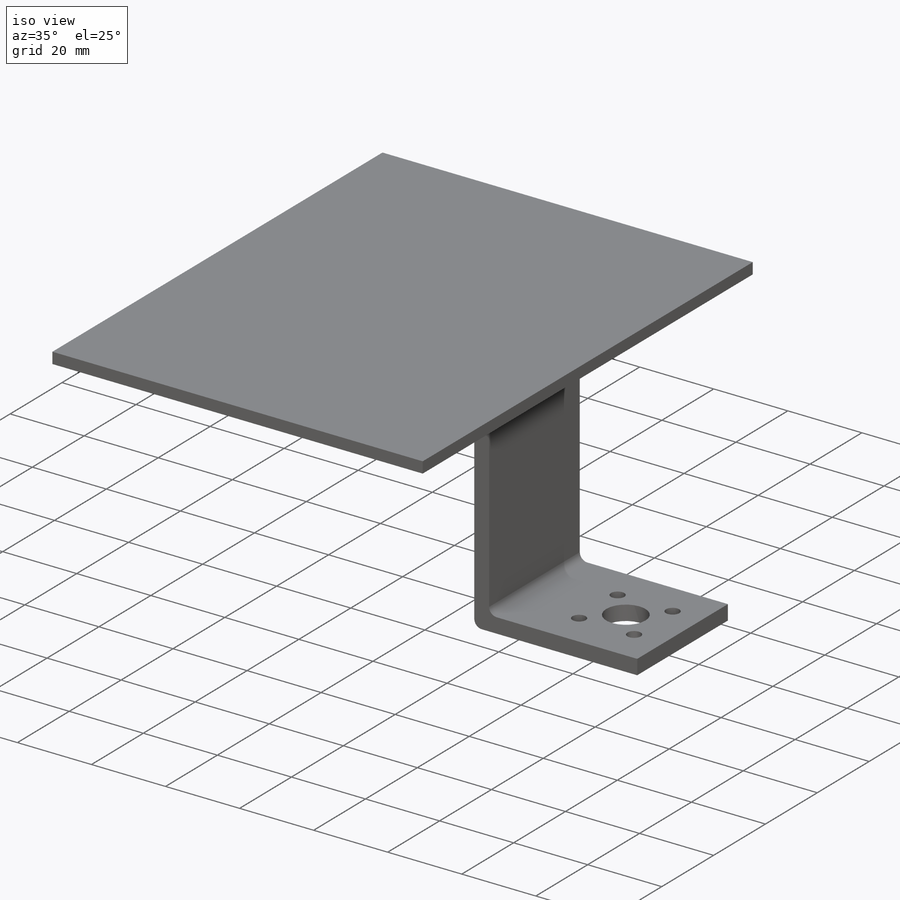
[diagram: iso view]
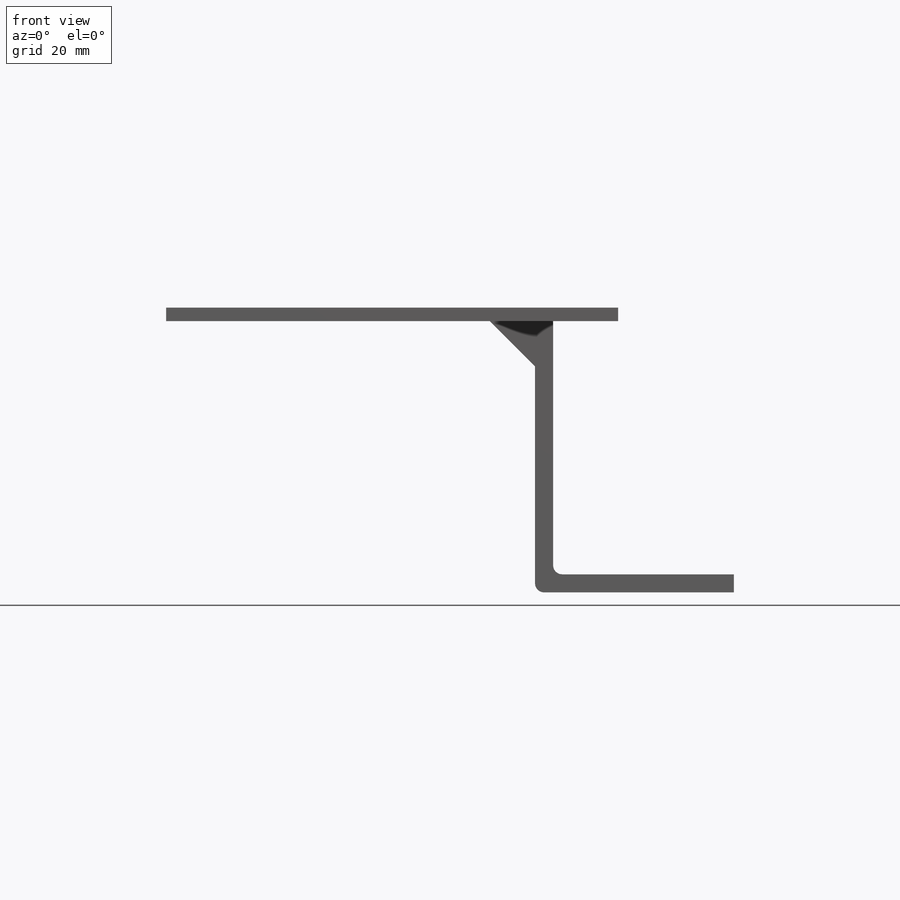
[diagram: front view]
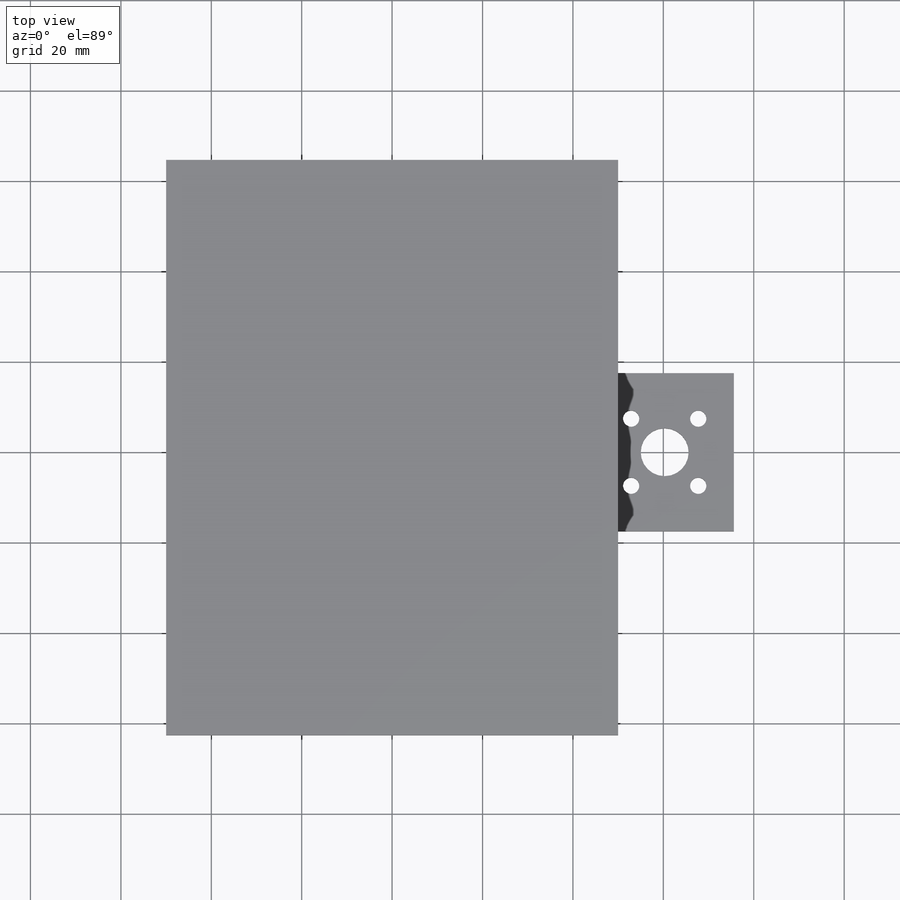
[diagram: top view]
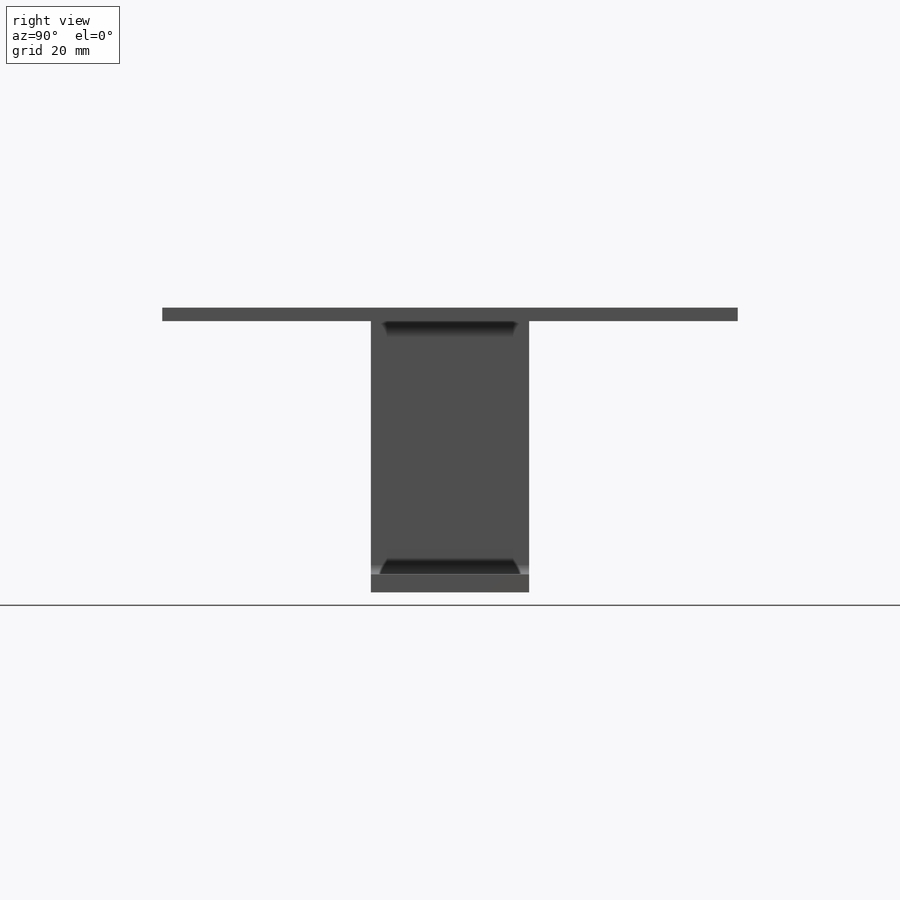
[diagram: right view]
SOLIDWORKS PART (.sldprt)
format: sldprt  version: not decoded by parser v0  size: 203,264 bytes
history: native  units: mm
features: sketch x4, plane x3, extrude x3, material x1, chamfer x1, fillet x1, cut_extrude x1 (+8 scaffold rows collapsed)
feature tree (22):
  scaffold x8  (default folders/planes/origin — collapsed)
  material  "Material <sin especificar>"
  plane  "Alzado"
  plane  "Planta"
  plane  "Vista lateral"
  sketch  "Croquis1"  dims[D1=100.0mm]
  extrude  "Saliente-Extruir1"  Depth=3mm
  sketch  "Croquis2"  dims[D1=4.0mm]
  extrude  "Saliente-Extruir2"  Depth=60mm
  sketch  "Croquis4"  dims[D1=4.0mm]
  extrude  "Saliente-Extruir3"  Depth=40mm
  chamfer  "Chaflán1"  Distance=10mm Angle=45deg
  fillet  "Redondeo1"  Radius=2mm
  sketch  "Croquis5"  dims[c1.D2=10.6mm c1.D3=21.0mm c1.D4=3.6mm c1.D1=~12.236333mm c2.D1=45.0deg c2.D5=4.0]
  cut_extrude  "Cortar-Extruir2"  Depth=40mm
decode coverage: 10 of 10 modeling features carry decoded parameters
note: ~ marks probable driven/reference dimensions
note: suppression state not decoded; provenance and decode notes live in map.json
